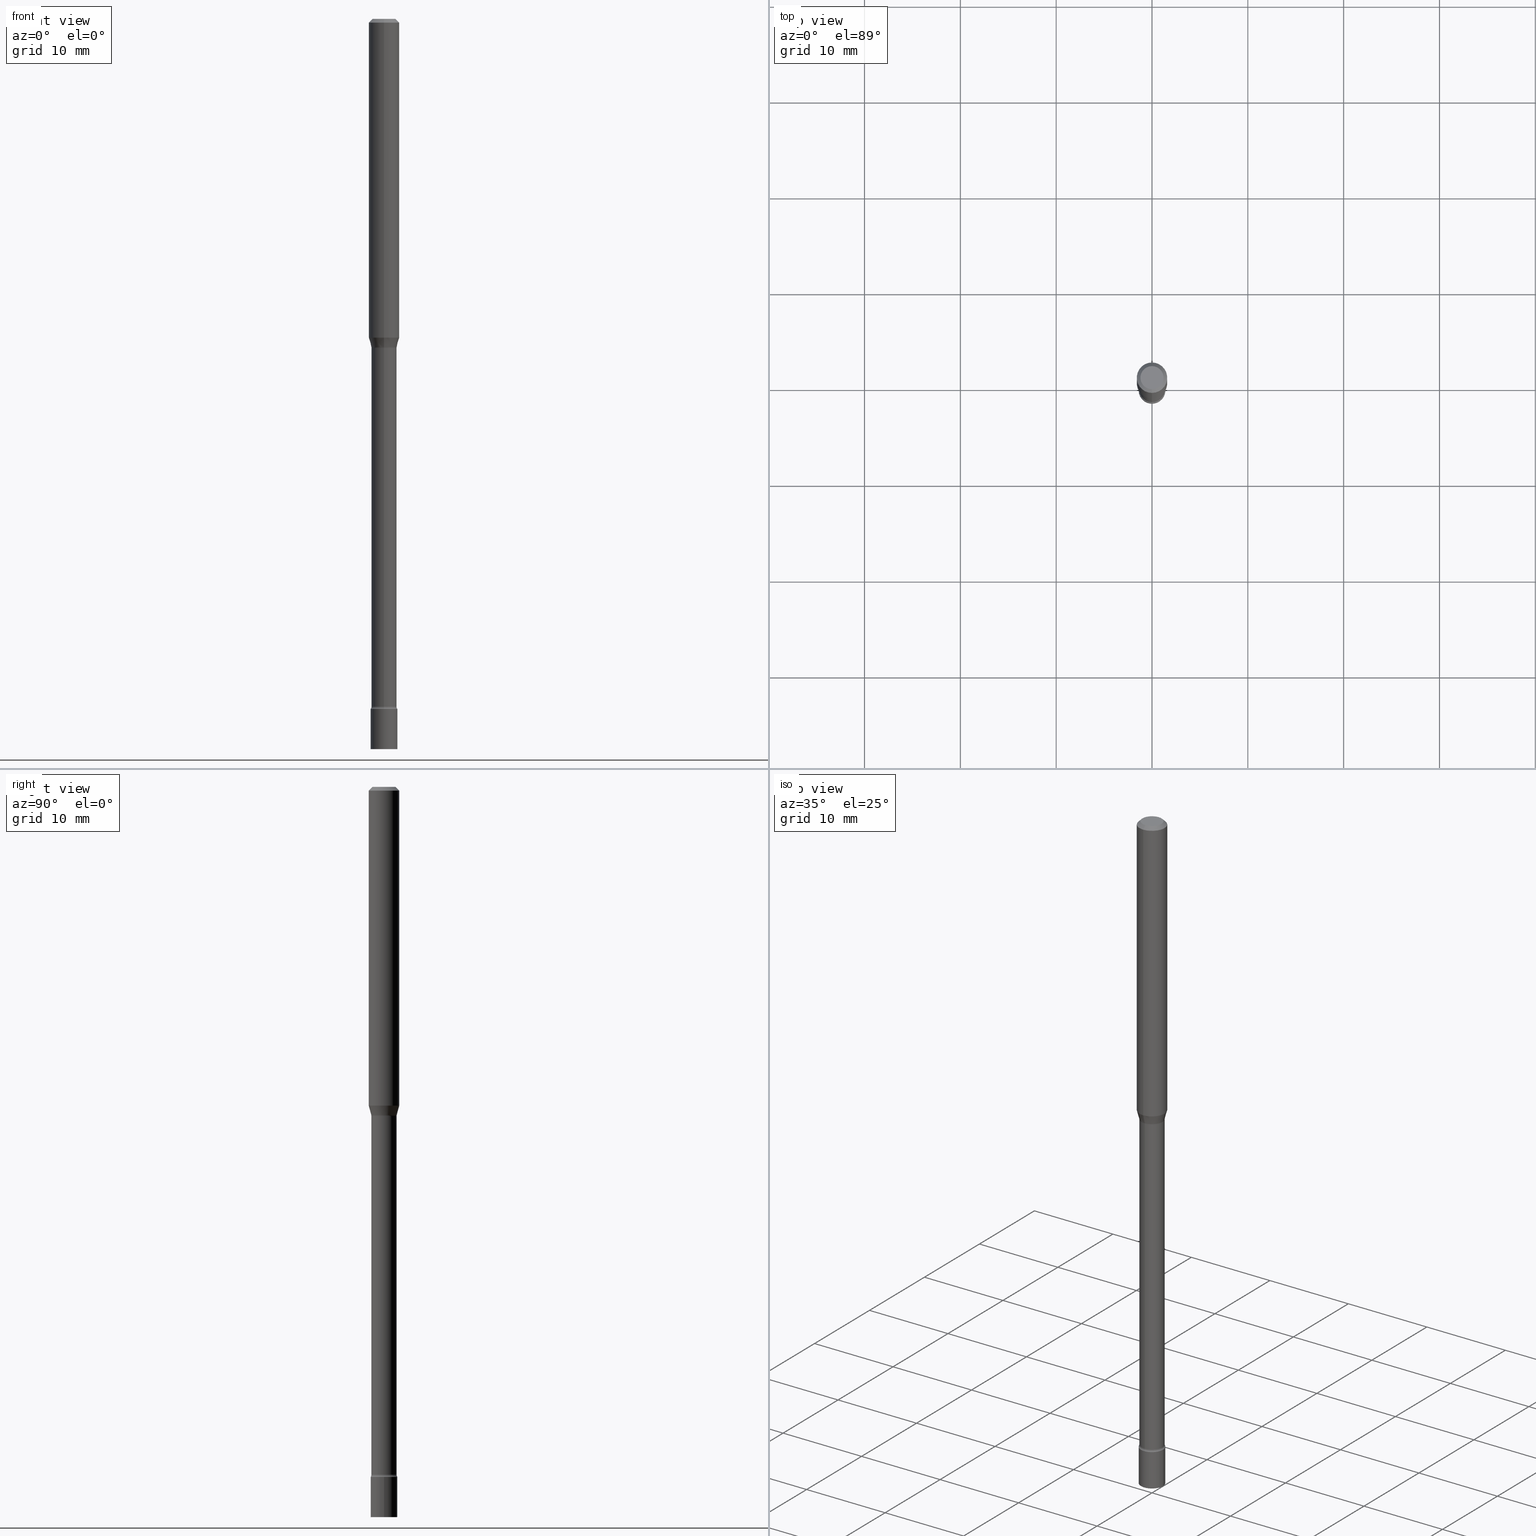
[diagram: canonical four-view strip — front | top / right | iso, engineering-drawing reading convention]
A machine part, canonical four-view strip (front | top / right | iso — engineering-drawing reading convention). The complete STEP part file that produces these views, byte-faithful:
ISO-10303-21;
HEADER;
FILE_DESCRIPTION (( 'STEP AP203' ),
    '1' );
FILE_NAME ('03640.STEP',
    '2024-03-08T22:17:13',
    ( '' ),
    ( '' ),
    'SwSTEP 2.0',
    'SolidWorks 2023',
    '' );
FILE_SCHEMA (( 'CONFIG_CONTROL_DESIGN' ));
ENDSEC;

DATA;
#1 = DIRECTION ( 'NONE',  ( -2.445453515065579190E-29, 3.491503236596668519E-15, 1.000000000000000000 ) ) ;
#2 = PERSON_AND_ORGANIZATION ( #211, #143 ) ;
#3 = CARTESIAN_POINT ( 'NONE',  ( 6.909949201323477273E-29, -9.865576133195845499E-15, -2.825613307291703347 ) ) ;
#4 = CLOSED_SHELL ( 'NONE', ( #458, #490, #255, #201 ) ) ;
#5 = DIRECTION ( 'NONE',  ( 1.000000000000000000, -6.982962677686265922E-15, 4.876176775795935793E-29 ) ) ;
#6 = CARTESIAN_POINT ( 'NONE',  ( 4.075357388645994900E-16, 0.05221111260565927670, -1.348092501787273800 ) ) ;
#7 = DIRECTION ( 'NONE',  ( -2.445453515065579190E-29, 3.491503236596668519E-15, 1.000000000000000000 ) ) ;
#8 = UNCERTAINTY_MEASURE_WITH_UNIT (LENGTH_MEASURE( 1.000000000000000082E-05 ), #519, 'distance_accuracy_value', 'NONE');
#9 = CARTESIAN_POINT ( 'NONE',  ( -3.610191704363808417E-16, -0.05170000000000012780, 1.805107173320482273E-16 ) ) ;
#10 = CALENDAR_DATE ( 2024, 8, 3 ) ;
#11 = DIRECTION ( 'NONE',  ( -6.982962677686265922E-15, -1.000000000000000000, 4.370956789862821150E-15 ) ) ;
#12 = PRODUCT_DEFINITION_SHAPE ( 'NONE', 'NONE',  #235 ) ;
#13 = AXIS2_PLACEMENT_3D ( 'NONE', #112, #402, #357 ) ;
#14 = EDGE_CURVE ( 'NONE', #161, #470, #78, .T. ) ;
#15 = CARTESIAN_POINT ( 'NONE',  ( -3.773273898774340269E-16, -0.04749999999999999362, 1.369335329537650629E-16 ) ) ;
#16 = DATE_TIME_ROLE ( 'classification_date' ) ;
#17 = DIRECTION ( 'NONE',  ( -2.445453515065579190E-29, 3.491503236596668519E-15, 1.000000000000000000 ) ) ;
#18 = LINE ( 'NONE', #54, #494 ) ;
#19 = CARTESIAN_POINT ( 'NONE',  ( 3.907985046681240802E-16, 0.05499999999999006378, -2.835000000000000409 ) ) ;
#20 = AXIS2_PLACEMENT_3D ( 'NONE', #251, #485, #416 ) ;
#21 = ORIENTED_EDGE ( 'NONE', *, *, #299, .F. ) ;
#22 = FACE_OUTER_BOUND ( 'NONE', #66, .T. ) ;
#23 = DIRECTION ( 'NONE',  ( 1.000000000000000000, -6.982962677686266711E-15, 4.876176775795935793E-29 ) ) ;
#24 = ORIENTED_EDGE ( 'NONE', *, *, #183, .T. ) ;
#25 = DIRECTION ( 'NONE',  ( -1.000000000000000000, 6.982962677686265922E-15, -4.883557194083112901E-29 ) ) ;
#26 = VERTEX_POINT ( 'NONE', #312 ) ;
#27 = CARTESIAN_POINT ( 'NONE',  ( 3.840629472728140100E-16, 0.05499999999999010541, -2.835000000000000409 ) ) ;
#28 = CC_DESIGN_DATE_AND_TIME_ASSIGNMENT ( #501, #174, ( #235 ) ) ;
#29 = ADVANCED_FACE ( 'NONE', ( #471 ), #208, .F. ) ;
#30 = ORIENTED_EDGE ( 'NONE', *, *, #59, .F. ) ;
#31 = PRODUCT_DEFINITION_FORMATION_WITH_SPECIFIED_SOURCE ( 'ANY', '', #64, .NOT_KNOWN. ) ;
#32 = VERTEX_POINT ( 'NONE', #19 ) ;
#33 = CARTESIAN_POINT ( 'NONE',  ( -4.657636106016061720E-16, -0.06670000000001005680, -2.825613307291703347 ) ) ;
#34 = ORIENTED_EDGE ( 'NONE', *, *, #513, .F. ) ;
#35 = MANIFOLD_SOLID_BREP ( 'Body-Move/Copy2[2]', #447 ) ;
#36 = DIRECTION ( 'NONE',  ( -6.982962677686265922E-15, -1.000000000000000000, 3.491503236596668913E-15 ) ) ;
#37 = DIRECTION ( 'NONE',  ( -2.445453515065579190E-29, 3.491503236596668519E-15, 1.000000000000000000 ) ) ;
#38 = ORIENTED_EDGE ( 'NONE', *, *, #334, .F. ) ;
#39 = ADVANCED_FACE ( 'NONE', ( #465 ), #393, .F. ) ;
#40 = CIRCLE ( 'NONE', #175, 0.01500000000000001853 ) ;
#41 = CARTESIAN_POINT ( 'NONE',  ( 3.202795432268188890E-29, -4.572800320688787999E-15, -1.309693851278256549 ) ) ;
#42 = ORIENTED_EDGE ( 'NONE', *, *, #213, .F. ) ;
#43 = EDGE_CURVE ( 'NONE', #171, #237, #244, .T. ) ;
#44 = VERTEX_POINT ( 'NONE', #105 ) ;
#45 = PLANE ( 'NONE',  #142 ) ;
#46 = PERSON_AND_ORGANIZATION_ROLE ( 'design_owner' ) ;
#47 = ORIENTED_EDGE ( 'NONE', *, *, #111, .F. ) ;
#48 = CC_DESIGN_PERSON_AND_ORGANIZATION_ASSIGNMENT ( #103, #344, ( #235 ) ) ;
#49 = EDGE_CURVE ( 'NONE', #237, #171, #238, .T. ) ;
#50 = AXIS2_PLACEMENT_3D ( 'NONE', #215, #100, #173 ) ;
#51 = CC_DESIGN_APPROVAL ( #72, ( #31 ) ) ;
#52 = DIRECTION ( 'NONE',  ( 1.000000000000000000, -6.982962677686266711E-15, 4.876176775795935793E-29 ) ) ;
#53 = CARTESIAN_POINT ( 'NONE',  ( 3.202795432268188890E-29, -4.572800320688787999E-15, -1.309693851278256549 ) ) ;
#54 = CARTESIAN_POINT ( 'NONE',  ( 3.709822678791042177E-16, 0.05221111260565927670, -1.348092501787273800 ) ) ;
#55 = AXIS2_PLACEMENT_3D ( 'NONE', #335, #87, #489 ) ;
#56 = PERSON_AND_ORGANIZATION ( #211, #143 ) ;
#57 = DIRECTION ( 'NONE',  ( 6.982962677686265922E-15, 1.000000000000000000, -3.491503236596668913E-15 ) ) ;
#58 = CALENDAR_DATE ( 2024, 8, 3 ) ;
#59 = EDGE_CURVE ( 'NONE', #26, #333, #266, .T. ) ;
#60 = CARTESIAN_POINT ( 'NONE',  ( 6.909905994532571986E-29, -9.865638007779597424E-15, -2.825613307291703347 ) ) ;
#61 = DATE_AND_TIME ( #10, #453 ) ;
#62 = DIRECTION ( 'NONE',  ( -2.445453515065579190E-29, 3.491503236596668519E-15, 1.000000000000000000 ) ) ;
#63 = CARTESIAN_POINT ( 'NONE',  ( 7.070508149077992484E-46, -1.009493819236507382E-31, -2.891287078457668067E-17 ) ) ;
#64 = PRODUCT ( '03640', '03640', '', ( #410 ) ) ;
#65 = AXIS2_PLACEMENT_3D ( 'NONE', #184, #37, #510 ) ;
#66 = EDGE_LOOP ( 'NONE', ( #232, #480, #350, #83 ) ) ;
#67 = EDGE_CURVE ( 'NONE', #44, #433, #512, .T. ) ;
#68 = DIRECTION ( 'NONE',  ( -2.445453515065579190E-29, 3.491503236596668519E-15, 1.000000000000000000 ) ) ;
#69 = DIRECTION ( 'NONE',  ( -2.445453515065579470E-29, 3.491503236596668913E-15, 1.000000000000000000 ) ) ;
#70 = EDGE_LOOP ( 'NONE', ( #122, #196, #449, #400 ) ) ;
#71 = ADVANCED_BREP_SHAPE_REPRESENTATION ( '03640', ( #194, #35, #508 ), #225 ) ;
#72 = APPROVAL ( #300, 'UNSPECIFIED' ) ;
#73 = ADVANCED_FACE ( 'NONE', ( #150 ), #317, .T. ) ;
#74 = DIRECTION ( 'NONE',  ( 1.000000000000000000, -7.105427357601001070E-15, 4.926315776712220110E-29 ) ) ;
#75 = EDGE_LOOP ( 'NONE', ( #38, #473 ) ) ;
#76 = DIRECTION ( 'NONE',  ( 2.445453515065579190E-29, -3.491503236596668519E-15, -1.000000000000000000 ) ) ;
#77 = AXIS2_PLACEMENT_3D ( 'NONE', #248, #336, #481 ) ;
#78 = CIRCLE ( 'NONE', #138, 0.05500000000000000028 ) ;
#79 = CARTESIAN_POINT ( 'NONE',  ( 4.739320047520198249E-16, 0.06669999999999527696, -1.351974787463811722 ) ) ;
#80 = DIRECTION ( 'NONE',  ( 7.105427357601001859E-15, 1.000000000000000000, 0.000000000000000000 ) ) ;
#81 = ORIENTED_EDGE ( 'NONE', *, *, #273, .T. ) ;
#82 = AXIS2_PLACEMENT_3D ( 'NONE', #115, #68, #475 ) ;
#83 = ORIENTED_EDGE ( 'NONE', *, *, #411, .F. ) ;
#84 =( NAMED_UNIT ( * ) SI_UNIT ( $, .STERADIAN. ) SOLID_ANGLE_UNIT ( ) );
#85 = EDGE_LOOP ( 'NONE', ( #185, #371, #158, #42 ) ) ;
#86 = AXIS2_PLACEMENT_3D ( 'NONE', #314, #109, #274 ) ;
#87 = DIRECTION ( 'NONE',  ( -2.445453515065579190E-29, 3.491503236596668519E-15, 1.000000000000000000 ) ) ;
#88 = ADVANCED_FACE ( 'NONE', ( #390 ), #438, .T. ) ;
#89 =( LENGTH_UNIT ( ) NAMED_UNIT ( * ) SI_UNIT ( $, .METRE. ) );
#90 = ORIENTED_EDGE ( 'NONE', *, *, #399, .F. ) ;
#91 = DIRECTION ( 'NONE',  ( -6.982962677686266711E-15, -1.000000000000000000, 0.000000000000000000 ) ) ;
#92 = ADVANCED_FACE ( 'NONE', ( #505 ), #227, .T. ) ;
#93 = VERTEX_POINT ( 'NONE', #6 ) ;
#94 = CARTESIAN_POINT ( 'NONE',  ( 3.668180272598376107E-31, -5.237254854895013132E-17, -0.01500000000000003067 ) ) ;
#95 = CARTESIAN_POINT ( 'NONE',  ( 6.932904065534862655E-29, -9.898349595620319665E-15, -2.835000000000000409 ) ) ;
#96 = CIRCLE ( 'NONE', #156, 0.05500000000000000028 ) ;
#97 = CARTESIAN_POINT ( 'NONE',  ( 0.000000000000000000, 0.000000000000000000, 0.000000000000000000 ) ) ;
#98 = CC_DESIGN_PERSON_AND_ORGANIZATION_ASSIGNMENT ( #139, #456, ( #407 ) ) ;
#99 = PERSON_AND_ORGANIZATION ( #211, #143 ) ;
#100 = DIRECTION ( 'NONE',  ( -2.445468806185136597E-29, 3.491481338843145583E-15, 1.000000000000000000 ) ) ;
#101 = APPROVAL_ROLE ( '' ) ;
#102 = TOROIDAL_SURFACE ( 'NONE', #517, 0.06670000000000018969, 0.01499999999999994740 ) ;
#103 = PERSON_AND_ORGANIZATION ( #211, #143 ) ;
#104 = LOCAL_TIME ( 17, 17, 13.00000000000000000, #491 ) ;
#105 = CARTESIAN_POINT ( 'NONE',  ( -3.610191704363469207E-16, -0.05170000000000472135, -1.351974787463811056 ) ) ;
#106 = ORIENTED_EDGE ( 'NONE', *, *, #270, .F. ) ;
#107 = DIRECTION ( 'NONE',  ( -6.982962677686266711E-15, -1.000000000000000000, 3.491503236596668913E-15 ) ) ;
#108 = CIRCLE ( 'NONE', #233, 0.05221111260566397433 ) ;
#109 = DIRECTION ( 'NONE',  ( -2.445453515065579190E-29, 3.491503236596668519E-15, 1.000000000000000000 ) ) ;
#110 = APPROVAL ( #463, 'UNSPECIFIED' ) ;
#111 = EDGE_CURVE ( 'NONE', #140, #26, #359, .T. ) ;
#112 = CARTESIAN_POINT ( 'NONE',  ( 3.306191496283416407E-29, -4.720424346226990605E-15, -1.351974787463811278 ) ) ;
#113 = ORIENTED_EDGE ( 'NONE', *, *, #389, .T. ) ;
#114 = DIRECTION ( 'NONE',  ( -2.445468806185136597E-29, 3.491481338843145583E-15, 1.000000000000000000 ) ) ;
#115 = CARTESIAN_POINT ( 'NONE',  ( 3.296697547129238582E-29, -4.706869333221964340E-15, -1.348092501787273356 ) ) ;
#116 = CARTESIAN_POINT ( 'NONE',  ( -3.840629472726750225E-16, -0.05500000000000986045, -2.835000000000000409 ) ) ;
#117 = VECTOR ( 'NONE', #250, 39.37007874015748143 ) ;
#118 = EDGE_LOOP ( 'NONE', ( #315, #148, #356, #275 ) ) ;
#119 = DIRECTION ( 'NONE',  ( -6.982962677686265922E-15, -1.000000000000000000, 3.491503236596668124E-15 ) ) ;
#120 = LINE ( 'NONE', #476, #296 ) ;
#121 = VECTOR ( 'NONE', #352, 39.37007874015748143 ) ;
#122 = ORIENTED_EDGE ( 'NONE', *, *, #283, .F. ) ;
#123 = VERTEX_POINT ( 'NONE', #373 ) ;
#124 = ADVANCED_FACE ( 'NONE', ( #176 ), #152, .T. ) ;
#125 = DIRECTION ( 'NONE',  ( -2.445453515065579190E-29, 3.491503236596668519E-15, 1.000000000000000000 ) ) ;
#126 = CIRCLE ( 'NONE', #382, 0.01499999999999994220 ) ;
#127 = EDGE_CURVE ( 'NONE', #279, #365, #254, .T. ) ;
#128 = DIRECTION ( 'NONE',  ( -2.445453515065579190E-29, 3.491503236596668519E-15, 1.000000000000000000 ) ) ;
#129 = FACE_OUTER_BOUND ( 'NONE', #366, .T. ) ;
#130 = CARTESIAN_POINT ( 'NONE',  ( -0.05500000000000000028, -9.795598301406821771E-15, -2.835000000000000409 ) ) ;
#131 = DIRECTION ( 'NONE',  ( -2.445468806185136597E-29, 3.491481338843145583E-15, 1.000000000000000000 ) ) ;
#132 = CIRCLE ( 'NONE', #86, 0.05500000000000000028 ) ;
#133 = CARTESIAN_POINT ( 'NONE',  ( 3.296697547129238582E-29, -4.706869333221964340E-15, -1.348092501787273356 ) ) ;
#134 = CC_DESIGN_PERSON_AND_ORGANIZATION_ASSIGNMENT ( #56, #502, ( #31 ) ) ;
#135 = EDGE_CURVE ( 'NONE', #470, #161, #363, .T. ) ;
#136 = VECTOR ( 'NONE', #431, 39.37007874015748143 ) ;
#137 = SECURITY_CLASSIFICATION_LEVEL ( 'unclassified' ) ;
#138 = AXIS2_PLACEMENT_3D ( 'NONE', #269, #218, #307 ) ;
#139 = PERSON_AND_ORGANIZATION ( #211, #143 ) ;
#140 = VERTEX_POINT ( 'NONE', #219 ) ;
#141 = DIRECTION ( 'NONE',  ( -6.982962677686266711E-15, -1.000000000000000000, 0.000000000000000000 ) ) ;
#142 = AXIS2_PLACEMENT_3D ( 'NONE', #245, #292, #169 ) ;
#143 = ORGANIZATION ( 'UNSPECIFIED', 'UNSPECIFIED', '' ) ;
#144 = CARTESIAN_POINT ( 'NONE',  ( 4.364351673553919652E-16, 0.06249999999999995143, -0.01500000000000024751 ) ) ;
#145 = ORIENTED_EDGE ( 'NONE', *, *, #442, .F. ) ;
#146 = DIRECTION ( 'NONE',  ( -6.982962677686266711E-15, -1.000000000000000000, 5.284038672464726492E-15 ) ) ;
#147 = CARTESIAN_POINT ( 'NONE',  ( -3.610191704363126052E-16, -0.05170000000001011287, -2.825613307291703347 ) ) ;
#148 = ORIENTED_EDGE ( 'NONE', *, *, #163, .T. ) ;
#149 = AXIS2_PLACEMENT_3D ( 'NONE', #430, #509, #146 ) ;
#150 = FACE_OUTER_BOUND ( 'NONE', #488, .T. ) ;
#151 = DIRECTION ( 'NONE',  ( -6.982962677686263555E-15, -1.000000000000000000, 0.000000000000000000 ) ) ;
#152 = CONICAL_SURFACE ( 'NONE', #498, 0.05221111260566397433, 0.2617993877991502960 ) ;
#153 = CARTESIAN_POINT ( 'NONE',  ( 0.000000000000000000, 0.000000000000000000, 0.000000000000000000 ) ) ;
#154 = DIRECTION ( 'NONE',  ( -2.445453515065579470E-29, 3.491503236596668913E-15, 1.000000000000000000 ) ) ;
#155 = CIRCLE ( 'NONE', #13, 0.05169999999999999596 ) ;
#156 = AXIS2_PLACEMENT_3D ( 'NONE', #284, #166, #91 ) ;
#157 = ORIENTED_EDGE ( 'NONE', *, *, #223, .F. ) ;
#158 = ORIENTED_EDGE ( 'NONE', *, *, #14, .F. ) ;
#159 = CARTESIAN_POINT ( 'NONE',  ( 0.000000000000000000, 0.000000000000000000, 0.000000000000000000 ) ) ;
#160 = ORIENTED_EDGE ( 'NONE', *, *, #223, .T. ) ;
#161 = VERTEX_POINT ( 'NONE', #256 ) ;
#162 = CARTESIAN_POINT ( 'NONE',  ( 0.000000000000000000, 0.000000000000000000, 0.000000000000000000 ) ) ;
#163 = EDGE_CURVE ( 'NONE', #93, #140, #18, .T. ) ;
#164 = EDGE_LOOP ( 'NONE', ( #202, #326, #311, #346 ) ) ;
#165 = LINE ( 'NONE', #286, #117 ) ;
#166 = DIRECTION ( 'NONE',  ( -2.445453515065579190E-29, 3.491503236596668519E-15, 1.000000000000000000 ) ) ;
#167 = EDGE_LOOP ( 'NONE', ( #21, #249 ) ) ;
#168 = CIRCLE ( 'NONE', #65, 0.05221111260566397433 ) ;
#169 = DIRECTION ( 'NONE',  ( -1.000000000000000000, 6.982962677686265922E-15, -4.876176775795935793E-29 ) ) ;
#170 = APPROVAL_ROLE ( '' ) ;
#171 = VERTEX_POINT ( 'NONE', #15 ) ;
#172 = FACE_OUTER_BOUND ( 'NONE', #361, .T. ) ;
#173 = DIRECTION ( 'NONE',  ( 1.000000000000000000, -6.982962677686279332E-15, 0.000000000000000000 ) ) ;
#174 = DATE_TIME_ROLE ( 'creation_date' ) ;
#175 = AXIS2_PLACEMENT_3D ( 'NONE', #79, #74, #195 ) ;
#176 = FACE_OUTER_BOUND ( 'NONE', #187, .T. ) ;
#177 = LOCAL_TIME ( 17, 17, 13.00000000000000000, #210 ) ;
#178 = ADVANCED_FACE ( 'NONE', ( #22 ), #276, .F. ) ;
#179 = COORDINATED_UNIVERSAL_TIME_OFFSET ( 5, 0, .BEHIND. ) ;
#180 = ADVANCED_FACE ( 'NONE', ( #222 ), #460, .T. ) ;
#181 = AXIS2_PLACEMENT_3D ( 'NONE', #27, #504, #428 ) ;
#182 = CC_DESIGN_PERSON_AND_ORGANIZATION_ASSIGNMENT ( #306, #304, ( #31 ) ) ;
#183 = EDGE_CURVE ( 'NONE', #511, #333, #343, .T. ) ;
#184 = CARTESIAN_POINT ( 'NONE',  ( 3.296697547129238582E-29, -4.706869333221964340E-15, -1.348092501787273356 ) ) ;
#185 = ORIENTED_EDGE ( 'NONE', *, *, #299, .T. ) ;
#186 = LINE ( 'NONE', #436, #375 ) ;
#187 = EDGE_LOOP ( 'NONE', ( #362, #229, #81, #47 ) ) ;
#188 = DIRECTION ( 'NONE',  ( 2.445453515065578349E-29, -3.491503236596668913E-15, -1.000000000000000000 ) ) ;
#189 = AXIS2_PLACEMENT_3D ( 'NONE', #450, #125, #444 ) ;
#190 = FACE_OUTER_BOUND ( 'NONE', #285, .T. ) ;
#191 = ORIENTED_EDGE ( 'NONE', *, *, #67, .F. ) ;
#192 = DIRECTION ( 'NONE',  ( -4.851104656540964275E-15, -0.7071067811865500152, -0.7071067811865450192 ) ) ;
#193 = ORIENTED_EDGE ( 'NONE', *, *, #513, .T. ) ;
#194 = MANIFOLD_SOLID_BREP ( 'Body-Move/Copy2[1]', #4 ) ;
#195 = DIRECTION ( 'NONE',  ( 7.105427357601006592E-15, 1.000000000000000000, 0.000000000000000000 ) ) ;
#196 = ORIENTED_EDGE ( 'NONE', *, *, #231, .F. ) ;
#197 = ORIENTED_EDGE ( 'NONE', *, *, #43, .F. ) ;
#198 = AXIS2_PLACEMENT_3D ( 'NONE', #472, #385, #348 ) ;
#199 = ORIENTED_EDGE ( 'NONE', *, *, #378, .F. ) ;
#200 = DIMENSIONAL_EXPONENTS ( 1.000000000000000000, 0.000000000000000000, 0.000000000000000000, 0.000000000000000000, 0.000000000000000000, 0.000000000000000000, 0.000000000000000000 ) ;
#201 = ADVANCED_FACE ( 'NONE', ( #492 ), #45, .T. ) ;
#202 = ORIENTED_EDGE ( 'NONE', *, *, #389, .F. ) ;
#203 = FACE_OUTER_BOUND ( 'NONE', #240, .T. ) ;
#204 = DIRECTION ( 'NONE',  ( -6.982962677686266711E-15, -1.000000000000000000, 5.232311393739397672E-15 ) ) ;
#205 = PERSON_AND_ORGANIZATION ( #211, #143 ) ;
#206 = AXIS2_PLACEMENT_3D ( 'NONE', #291, #131, #52 ) ;
#207 = CC_DESIGN_PERSON_AND_ORGANIZATION_ASSIGNMENT ( #2, #46, ( #64 ) ) ;
#208 = TOROIDAL_SURFACE ( 'NONE', #478, 0.06669999999999999540, 0.01500000000000002720 ) ;
#209 = FACE_OUTER_BOUND ( 'NONE', #516, .T. ) ;
#210 = COORDINATED_UNIVERSAL_TIME_OFFSET ( 5, 0, .BEHIND. ) ;
#211 = PERSON ( 'UNSPECIFIED', 'UNSPECIFIED', 'UNSPECIFIED', ('UNSPECIFIED'), ('UNSPECIFIED'), ('UNSPECIFIED') ) ;
#212 = DATE_AND_TIME ( #499, #104 ) ;
#213 = EDGE_CURVE ( 'NONE', #123, #161, #165, .T. ) ;
#214 = VECTOR ( 'NONE', #493, 39.37007874015748143 ) ;
#215 = CARTESIAN_POINT ( 'NONE',  ( 6.932904065534862655E-29, -9.898349595620319665E-15, -2.835000000000000409 ) ) ;
#216 = LOCAL_TIME ( 17, 17, 13.00000000000000000, #339 ) ;
#217 = ADVANCED_FACE ( 'NONE', ( #203 ), #224, .F. ) ;
#218 = DIRECTION ( 'NONE',  ( -2.445468806185136597E-29, 3.491481338843145583E-15, 1.000000000000000000 ) ) ;
#219 = CARTESIAN_POINT ( 'NONE',  ( 4.440892098500946636E-16, 0.06249999999999545502, -1.309693851278256771 ) ) ;
#220 = APPROVAL_DATE_TIME ( #61, #110 ) ;
#221 = ORIENTED_EDGE ( 'NONE', *, *, #135, .F. ) ;
#222 = FACE_OUTER_BOUND ( 'NONE', #396, .T. ) ;
#223 = EDGE_CURVE ( 'NONE', #365, #279, #461, .T. ) ;
#224 = TOROIDAL_SURFACE ( 'NONE', #189, 0.06670000000000018969, 0.01499999999999994740 ) ;
#225 =( GEOMETRIC_REPRESENTATION_CONTEXT ( 3 ) GLOBAL_UNCERTAINTY_ASSIGNED_CONTEXT ( ( #8 ) ) GLOBAL_UNIT_ASSIGNED_CONTEXT ( ( #519, #338, #84 ) ) REPRESENTATION_CONTEXT ( 'NONE', 'WORKASPACE' ) );
#226 = VERTEX_POINT ( 'NONE', #329 ) ;
#227 = CYLINDRICAL_SURFACE ( 'NONE', #457, 0.05170000000000012780 ) ;
#228 = DIRECTION ( 'NONE',  ( 1.000000000000000000, -6.982962677686279332E-15, 0.000000000000000000 ) ) ;
#229 = ORIENTED_EDGE ( 'NONE', *, *, #313, .T. ) ;
#230 = DIRECTION ( 'NONE',  ( 1.000000000000000000, -6.982962677686279332E-15, 0.000000000000000000 ) ) ;
#231 = EDGE_CURVE ( 'NONE', #265, #93, #108, .T. ) ;
#232 = ORIENTED_EDGE ( 'NONE', *, *, #313, .F. ) ;
#233 = AXIS2_PLACEMENT_3D ( 'NONE', #486, #128, #204 ) ;
#234 = LINE ( 'NONE', #398, #443 ) ;
#235 = PRODUCT_DEFINITION ( 'UNKNOWN', '', #31, #341 ) ;
#236 = ADVANCED_FACE ( 'NONE', ( #290 ), #102, .F. ) ;
#237 = VERTEX_POINT ( 'NONE', #369 ) ;
#238 = CIRCLE ( 'NONE', #355, 0.04749999999999999362 ) ;
#239 = FACE_OUTER_BOUND ( 'NONE', #75, .T. ) ;
#240 = EDGE_LOOP ( 'NONE', ( #157, #113, #409, #199 ) ) ;
#241 = DIRECTION ( 'NONE',  ( -2.445453515065579470E-29, 3.491503236596668913E-15, 1.000000000000000000 ) ) ;
#242 = VECTOR ( 'NONE', #192, 39.37007874015748143 ) ;
#243 = ORIENTED_EDGE ( 'NONE', *, *, #43, .T. ) ;
#244 = CIRCLE ( 'NONE', #262, 0.04749999999999999362 ) ;
#245 = CARTESIAN_POINT ( 'NONE',  ( 3.840629472728180036E-16, 0.05499999999998952949, -3.000000000000000444 ) ) ;
#246 = LENGTH_MEASURE_WITH_UNIT ( LENGTH_MEASURE( 0.02539999999999999897 ), #89 );
#247 = DIRECTION ( 'NONE',  ( -6.982962677686265922E-15, -1.000000000000000000, 3.491503236596668124E-15 ) ) ;
#248 = CARTESIAN_POINT ( 'NONE',  ( 0.000000000000000000, 0.000000000000000000, 0.000000000000000000 ) ) ;
#249 = ORIENTED_EDGE ( 'NONE', *, *, #305, .F. ) ;
#250 = DIRECTION ( 'NONE',  ( -2.445468806185136877E-29, 3.491481338843145188E-15, 1.000000000000000000 ) ) ;
#251 = CARTESIAN_POINT ( 'NONE',  ( 3.668180272598376107E-31, -5.237254854895013132E-17, -0.01500000000000003067 ) ) ;
#252 = CIRCLE ( 'NONE', #451, 0.01500000000000003587 ) ;
#253 = DATE_AND_TIME ( #58, #177 ) ;
#254 = CIRCLE ( 'NONE', #406, 0.05170000000000024576 ) ;
#255 = ADVANCED_FACE ( 'NONE', ( #172 ), #337, .T. ) ;
#256 = CARTESIAN_POINT ( 'NONE',  ( 0.05500000000000000028, -1.028241254289306465E-14, -2.835000000000000409 ) ) ;
#257 = ADVANCED_FACE ( 'NONE', ( #190 ), #397, .T. ) ;
#258 = CALENDAR_DATE ( 2024, 8, 3 ) ;
#259 = AXIS2_PLACEMENT_3D ( 'NONE', #424, #62, #383 ) ;
#260 = DIRECTION ( 'NONE',  ( -2.445453515065579190E-29, 3.491503236596668519E-15, 1.000000000000000000 ) ) ;
#261 = APPROVAL_ROLE ( '' ) ;
#262 = AXIS2_PLACEMENT_3D ( 'NONE', #379, #17, #387 ) ;
#263 = SHAPE_DEFINITION_REPRESENTATION ( #12, #71 ) ;
#264 = DIRECTION ( 'NONE',  ( -2.445453515065579190E-29, 3.491503236596668519E-15, 1.000000000000000000 ) ) ;
#265 = VERTEX_POINT ( 'NONE', #318 ) ;
#266 = LINE ( 'NONE', #404, #121 ) ;
#267 = DIRECTION ( 'NONE',  ( -2.445453515065579190E-29, 3.491503236596668519E-15, 1.000000000000000000 ) ) ;
#268 = CARTESIAN_POINT ( 'NONE',  ( 3.790745495280832746E-16, 0.05169999999999037865, -2.825613307291703347 ) ) ;
#269 = CARTESIAN_POINT ( 'NONE',  ( 6.932904065534862655E-29, -9.898349595620319665E-15, -2.835000000000000409 ) ) ;
#270 = EDGE_CURVE ( 'NONE', #433, #44, #155, .T. ) ;
#271 = CARTESIAN_POINT ( 'NONE',  ( -3.645882506857935592E-16, -0.05221111260566867890, -1.348092501787273134 ) ) ;
#272 = ORIENTED_EDGE ( 'NONE', *, *, #59, .T. ) ;
#273 = EDGE_CURVE ( 'NONE', #265, #26, #432, .T. ) ;
#274 = DIRECTION ( 'NONE',  ( -6.982962677686266711E-15, -1.000000000000000000, 0.000000000000000000 ) ) ;
#275 = ORIENTED_EDGE ( 'NONE', *, *, #273, .F. ) ;
#276 = TOROIDAL_SURFACE ( 'NONE', #259, 0.06669999999999999540, 0.01500000000000002720 ) ;
#277 = DIRECTION ( 'NONE',  ( 1.000000000000000000, -7.105427357601001070E-15, 4.926315776712220110E-29 ) ) ;
#278 = EDGE_LOOP ( 'NONE', ( #474, #395, #191, #34 ) ) ;
#279 = VERTEX_POINT ( 'NONE', #147 ) ;
#280 = DIRECTION ( 'NONE',  ( -2.445468806185136877E-29, 3.491481338843145188E-15, 1.000000000000000000 ) ) ;
#281 = ORIENTED_EDGE ( 'NONE', *, *, #408, .F. ) ;
#282 = APPROVAL ( #370, 'UNSPECIFIED' ) ;
#283 = EDGE_CURVE ( 'NONE', #93, #433, #40, .T. ) ;
#284 = CARTESIAN_POINT ( 'NONE',  ( 6.932860715210917485E-29, -9.898411675751556010E-15, -2.835000000000000409 ) ) ;
#285 = EDGE_LOOP ( 'NONE', ( #197, #386, #289, #145 ) ) ;
#286 = CARTESIAN_POINT ( 'NONE',  ( 0.05500000000000000028, -3.840629472727446888E-16, 2.681897226687764826E-30 ) ) ;
#287 = APPLICATION_PROTOCOL_DEFINITION ( 'international standard', 'config_control_design', 1994, #293 ) ;
#288 = AXIS2_PLACEMENT_3D ( 'NONE', #506, #114, #230 ) ;
#289 = ORIENTED_EDGE ( 'NONE', *, *, #483, .T. ) ;
#290 = FACE_OUTER_BOUND ( 'NONE', #164, .T. ) ;
#291 = CARTESIAN_POINT ( 'NONE',  ( 0.000000000000000000, 0.000000000000000000, 0.000000000000000000 ) ) ;
#292 = DIRECTION ( 'NONE',  ( 2.438088387897960049E-29, -3.491481338843145188E-15, -1.000000000000000000 ) ) ;
#293 = APPLICATION_CONTEXT ( 'configuration controlled 3d designs of mechanical parts and assemblies' ) ;
#294 = DIRECTION ( 'NONE',  ( -2.445468806185136597E-29, 3.491481338843145583E-15, 1.000000000000000000 ) ) ;
#295 = FACE_OUTER_BOUND ( 'NONE', #85, .T. ) ;
#296 = VECTOR ( 'NONE', #69, 39.37007874015748143 ) ;
#297 = AXIS2_PLACEMENT_3D ( 'NONE', #464, #188, #57 ) ;
#298 = APPROVAL_DATE_TIME ( #495, #72 ) ;
#299 = EDGE_CURVE ( 'NONE', #123, #226, #302, .T. ) ;
#300 = APPROVAL_STATUS ( 'not_yet_approved' ) ;
#301 = DIRECTION ( 'NONE',  ( -2.445453515065579190E-29, 3.491503236596668519E-15, 1.000000000000000000 ) ) ;
#302 = CIRCLE ( 'NONE', #288, 0.05500000000000000028 ) ;
#303 = APPROVAL_PERSON_ORGANIZATION ( #205, #282, #170 ) ;
#304 = PERSON_AND_ORGANIZATION_ROLE ( 'creator' ) ;
#305 = EDGE_CURVE ( 'NONE', #226, #123, #417, .T. ) ;
#306 = PERSON_AND_ORGANIZATION ( #211, #143 ) ;
#307 = DIRECTION ( 'NONE',  ( 1.000000000000000000, -6.982962677686279332E-15, 0.000000000000000000 ) ) ;
#308 = LINE ( 'NONE', #144, #214 ) ;
#309 = AXIS2_PLACEMENT_3D ( 'NONE', #391, #277, #80 ) ;
#310 = DIRECTION ( 'NONE',  ( -2.445468806185136597E-29, 3.491481338843145583E-15, 1.000000000000000000 ) ) ;
#311 = ORIENTED_EDGE ( 'NONE', *, *, #378, .T. ) ;
#312 = CARTESIAN_POINT ( 'NONE',  ( -4.364351673553594740E-16, -0.06250000000000453804, -1.309693851278256327 ) ) ;
#313 = EDGE_CURVE ( 'NONE', #93, #265, #168, .T. ) ;
#314 = CARTESIAN_POINT ( 'NONE',  ( 6.932860715210917485E-29, -9.898411675751556010E-15, -2.835000000000000409 ) ) ;
#315 = ORIENTED_EDGE ( 'NONE', *, *, #231, .T. ) ;
#316 = ORIENTED_EDGE ( 'NONE', *, *, #442, .T. ) ;
#317 = CYLINDRICAL_SURFACE ( 'NONE', #423, 0.06250000000000000000 ) ;
#318 = CARTESIAN_POINT ( 'NONE',  ( -3.645882506857935592E-16, -0.05221111260566867890, -1.348092501787273134 ) ) ;
#319 = APPLICATION_CONTEXT ( 'configuration controlled 3d designs of mechanical parts and assemblies' ) ;
#320 = AXIS2_PLACEMENT_3D ( 'NONE', #95, #325, #5 ) ;
#321 = LINE ( 'NONE', #479, #242 ) ;
#322 = ADVANCED_FACE ( 'NONE', ( #239 ), #466, .F. ) ;
#323 = ORIENTED_EDGE ( 'NONE', *, *, #49, .F. ) ;
#324 = ORIENTED_EDGE ( 'NONE', *, *, #421, .F. ) ;
#325 = DIRECTION ( 'NONE',  ( -2.438088387897960049E-29, 3.491481338843145188E-15, 1.000000000000000000 ) ) ;
#326 = ORIENTED_EDGE ( 'NONE', *, *, #127, .F. ) ;
#327 = ORIENTED_EDGE ( 'NONE', *, *, #305, .T. ) ;
#328 = DIRECTION ( 'NONE',  ( -6.982962677686265922E-15, -1.000000000000000000, 3.483106191921935554E-15 ) ) ;
#329 = CARTESIAN_POINT ( 'NONE',  ( -0.05500000000000000028, -9.795598301406821771E-15, -3.000000000000000444 ) ) ;
#330 = DIRECTION ( 'NONE',  ( -2.445453515065579190E-29, 3.491503236596668519E-15, 1.000000000000000000 ) ) ;
#331 = AXIS2_PLACEMENT_3D ( 'NONE', #162, #1, #247 ) ;
#332 = APPROVAL_PERSON_ORGANIZATION ( #374, #110, #101 ) ;
#333 = VERTEX_POINT ( 'NONE', #353 ) ;
#334 = EDGE_CURVE ( 'NONE', #412, #32, #132, .T. ) ;
#335 = CARTESIAN_POINT ( 'NONE',  ( 6.909905994532571986E-29, -9.865638007779597424E-15, -2.825613307291703347 ) ) ;
#336 = DIRECTION ( 'NONE',  ( -2.445453515065579190E-29, 3.491503236596668519E-15, 1.000000000000000000 ) ) ;
#337 = CYLINDRICAL_SURFACE ( 'NONE', #507, 0.05500000000000000028 ) ;
#338 =( NAMED_UNIT ( * ) PLANE_ANGLE_UNIT ( ) SI_UNIT ( $, .RADIAN. ) );
#339 = COORDINATED_UNIVERSAL_TIME_OFFSET ( 5, 0, .BEHIND. ) ;
#340 = AXIS2_PLACEMENT_3D ( 'NONE', #94, #413, #328 ) ;
#341 = DESIGN_CONTEXT ( 'detailed design', #319, 'design' ) ;
#342 = APPROVAL_DATE_TIME ( #212, #282 ) ;
#343 = CIRCLE ( 'NONE', #340, 0.06250000000000000000 ) ;
#344 = PERSON_AND_ORGANIZATION_ROLE ( 'creator' ) ;
#345 = DIRECTION ( 'NONE',  ( -1.000000000000000000, 6.982962677686265922E-15, -4.883557194083112901E-29 ) ) ;
#346 = ORIENTED_EDGE ( 'NONE', *, *, #334, .T. ) ;
#347 = CARTESIAN_POINT ( 'NONE',  ( 0.000000000000000000, 0.000000000000000000, 0.000000000000000000 ) ) ;
#348 = DIRECTION ( 'NONE',  ( 6.982962677686265922E-15, 1.000000000000000000, -3.483106191921935554E-15 ) ) ;
#349 = ADVANCED_FACE ( 'NONE', ( #360 ), #467, .T. ) ;
#350 = ORIENTED_EDGE ( 'NONE', *, *, #270, .T. ) ;
#351 = AXIS2_PLACEMENT_3D ( 'NONE', #394, #310, #228 ) ;
#352 = DIRECTION ( 'NONE',  ( -2.445453515065579470E-29, 3.491503236596668913E-15, 1.000000000000000000 ) ) ;
#353 = CARTESIAN_POINT ( 'NONE',  ( -4.364351673553912750E-16, -0.06250000000000005551, -0.01499999999999981209 ) ) ;
#354 = ORIENTED_EDGE ( 'NONE', *, *, #213, .T. ) ;
#355 = AXIS2_PLACEMENT_3D ( 'NONE', #63, #384, #107 ) ;
#356 = ORIENTED_EDGE ( 'NONE', *, *, #500, .F. ) ;
#357 = DIRECTION ( 'NONE',  ( -6.982962677686266711E-15, -1.000000000000000000, 5.284038672464726492E-15 ) ) ;
#358 = EDGE_LOOP ( 'NONE', ( #427, #243 ) ) ;
#359 = CIRCLE ( 'NONE', #401, 0.06250000000000000000 ) ;
#360 = FACE_OUTER_BOUND ( 'NONE', #484, .T. ) ;
#361 = EDGE_LOOP ( 'NONE', ( #324, #327, #354, #221 ) ) ;
#362 = ORIENTED_EDGE ( 'NONE', *, *, #163, .F. ) ;
#363 = CIRCLE ( 'NONE', #50, 0.05500000000000000028 ) ;
#364 = CARTESIAN_POINT ( 'NONE',  ( 4.440892098500948609E-16, 0.06249999999999995143, -0.01500000000000024751 ) ) ;
#365 = VERTEX_POINT ( 'NONE', #268 ) ;
#366 = EDGE_LOOP ( 'NONE', ( #518, #160, #193, #106 ) ) ;
#367 = CYLINDRICAL_SURFACE ( 'NONE', #206, 0.05500000000000000028 ) ;
#368 = EDGE_CURVE ( 'NONE', #365, #433, #234, .T. ) ;
#369 = CARTESIAN_POINT ( 'NONE',  ( 3.840629472727447874E-16, 0.04749999999999999362, -1.947592745229184365E-16 ) ) ;
#370 = APPROVAL_STATUS ( 'not_yet_approved' ) ;
#371 = ORIENTED_EDGE ( 'NONE', *, *, #421, .T. ) ;
#372 = LINE ( 'NONE', #9, #376 ) ;
#373 = CARTESIAN_POINT ( 'NONE',  ( 0.05500000000000000028, -1.085850696380218292E-14, -3.000000000000000444 ) ) ;
#374 = PERSON_AND_ORGANIZATION ( #211, #143 ) ;
#375 = VECTOR ( 'NONE', #280, 39.37007874015748143 ) ;
#376 = VECTOR ( 'NONE', #241, 39.37007874015748143 ) ;
#377 = DIRECTION ( 'NONE',  ( 1.839019923739600315E-15, 0.2588190451025249583, 0.9659258262890670910 ) ) ;
#378 = EDGE_CURVE ( 'NONE', #279, #412, #126, .T. ) ;
#379 = CARTESIAN_POINT ( 'NONE',  ( 7.070508149077992484E-46, -1.009493819236507382E-31, -2.891287078457668067E-17 ) ) ;
#380 = CIRCLE ( 'NONE', #426, 0.06250000000000000000 ) ;
#381 = ORIENTED_EDGE ( 'NONE', *, *, #483, .F. ) ;
#382 = AXIS2_PLACEMENT_3D ( 'NONE', #33, #345, #141 ) ;
#383 = DIRECTION ( 'NONE',  ( -6.982962677686265133E-15, -1.000000000000000000, 3.491503236596668519E-15 ) ) ;
#384 = DIRECTION ( 'NONE',  ( -2.445453515065579190E-29, 3.491503236596668519E-15, 1.000000000000000000 ) ) ;
#385 = DIRECTION ( 'NONE',  ( 2.445453515065579190E-29, -3.491503236596668519E-15, -1.000000000000000000 ) ) ;
#386 = ORIENTED_EDGE ( 'NONE', *, *, #399, .T. ) ;
#387 = DIRECTION ( 'NONE',  ( -6.982962677686266711E-15, -1.000000000000000000, 3.491503236596668913E-15 ) ) ;
#388 = CC_DESIGN_DATE_AND_TIME_ASSIGNMENT ( #253, #16, ( #407 ) ) ;
#389 = EDGE_CURVE ( 'NONE', #365, #32, #420, .T. ) ;
#390 = FACE_OUTER_BOUND ( 'NONE', #118, .T. ) ;
#391 = CARTESIAN_POINT ( 'NONE',  ( 4.739320047520571972E-16, 0.06669999999999032259, -2.825613307291703347 ) ) ;
#392 = ORIENTED_EDGE ( 'NONE', *, *, #111, .T. ) ;
#393 = PLANE ( 'NONE',  #297 ) ;
#394 = CARTESIAN_POINT ( 'NONE',  ( 7.336406418555409790E-29, -1.047444401652943635E-14, -3.000000000000000444 ) ) ;
#395 = ORIENTED_EDGE ( 'NONE', *, *, #368, .T. ) ;
#396 = EDGE_LOOP ( 'NONE', ( #440, #482, #381, #30 ) ) ;
#397 = CONICAL_SURFACE ( 'NONE', #198, 0.06250000000000000000, 0.7853981633974483900 ) ;
#398 = CARTESIAN_POINT ( 'NONE',  ( 3.673505943879726548E-16, 0.05170000000000012780, -1.805107173320482273E-16 ) ) ;
#399 = EDGE_CURVE ( 'NONE', #171, #333, #321, .T. ) ;
#400 = ORIENTED_EDGE ( 'NONE', *, *, #67, .T. ) ;
#401 = AXIS2_PLACEMENT_3D ( 'NONE', #53, #264, #11 ) ;
#402 = DIRECTION ( 'NONE',  ( -2.445453515065579190E-29, 3.491503236596668519E-15, 1.000000000000000000 ) ) ;
#403 = ORIENTED_EDGE ( 'NONE', *, *, #14, .T. ) ;
#404 = CARTESIAN_POINT ( 'NONE',  ( -4.364351673553916201E-16, -0.06250000000000000000, 2.182189522872917578E-16 ) ) ;
#405 = PLANE ( 'NONE',  #320 ) ;
#406 = AXIS2_PLACEMENT_3D ( 'NONE', #60, #454, #418 ) ;
#407 = SECURITY_CLASSIFICATION ( '', '', #137 ) ;
#408 = EDGE_CURVE ( 'NONE', #140, #511, #120, .T. ) ;
#409 = ORIENTED_EDGE ( 'NONE', *, *, #497, .T. ) ;
#410 = MECHANICAL_CONTEXT ( 'NONE', #293, 'mechanical' ) ;
#411 = EDGE_CURVE ( 'NONE', #265, #44, #252, .T. ) ;
#412 = VERTEX_POINT ( 'NONE', #116 ) ;
#413 = DIRECTION ( 'NONE',  ( -2.445453515065579190E-29, 3.491503236596668519E-15, 1.000000000000000000 ) ) ;
#414 = DIRECTION ( 'NONE',  ( 1.000000000000000000, 0.000000000000000000, 0.000000000000000000 ) ) ;
#415 = DIRECTION ( 'NONE',  ( -6.982962677686265133E-15, -1.000000000000000000, 3.491503236596668519E-15 ) ) ;
#416 = DIRECTION ( 'NONE',  ( -6.982962677686265922E-15, -1.000000000000000000, 3.483106191921935554E-15 ) ) ;
#417 = CIRCLE ( 'NONE', #351, 0.05500000000000000028 ) ;
#418 = DIRECTION ( 'NONE',  ( -6.982962677686265922E-15, -1.000000000000000000, 0.000000000000000000 ) ) ;
#419 = COORDINATED_UNIVERSAL_TIME_OFFSET ( 5, 0, .BEHIND. ) ;
#420 = CIRCLE ( 'NONE', #309, 0.01499999999999994220 ) ;
#421 = EDGE_CURVE ( 'NONE', #226, #470, #186, .T. ) ;
#422 = DIRECTION ( 'NONE',  ( -6.982962677686266711E-15, -1.000000000000000000, 5.232311393739397672E-15 ) ) ;
#423 = AXIS2_PLACEMENT_3D ( 'NONE', #347, #267, #119 ) ;
#424 = CARTESIAN_POINT ( 'NONE',  ( 3.306212169491530451E-29, -4.720394741016325897E-15, -1.351974787463811278 ) ) ;
#425 = CARTESIAN_POINT ( 'NONE',  ( 3.306212169491530451E-29, -4.720394741016325897E-15, -1.351974787463811278 ) ) ;
#426 = AXIS2_PLACEMENT_3D ( 'NONE', #41, #330, #446 ) ;
#427 = ORIENTED_EDGE ( 'NONE', *, *, #49, .T. ) ;
#428 = DIRECTION ( 'NONE',  ( -6.982962677686265922E-15, -1.000000000000000000, 3.491503236596668913E-15 ) ) ;
#429 = DIRECTION ( 'NONE',  ( -6.982962677686265133E-15, -1.000000000000000000, 3.491503236596668519E-15 ) ) ;
#430 = CARTESIAN_POINT ( 'NONE',  ( 3.306191496283416407E-29, -4.720424346226990605E-15, -1.351974787463811278 ) ) ;
#431 = DIRECTION ( 'NONE',  ( -1.807323732225330139E-15, -0.2588190451025181860, 0.9659258262890689783 ) ) ;
#432 = LINE ( 'NONE', #271, #136 ) ;
#433 = VERTEX_POINT ( 'NONE', #437 ) ;
#434 = CIRCLE ( 'NONE', #20, 0.06250000000000000000 ) ;
#435 = LOCAL_TIME ( 17, 17, 13.00000000000000000, #179 ) ;
#436 = CARTESIAN_POINT ( 'NONE',  ( -0.05500000000000000028, 3.907985046680551042E-16, -2.705414299640198362E-30 ) ) ;
#437 = CARTESIAN_POINT ( 'NONE',  ( 3.673505943880415323E-16, 0.05169999999999527751, -1.351974787463811722 ) ) ;
#438 = CONICAL_SURFACE ( 'NONE', #82, 0.05221111260566397433, 0.2617993877991502960 ) ;
#439 = DIRECTION ( 'NONE',  ( 0.000000000000000000, 0.000000000000000000, 1.000000000000000000 ) ) ;
#440 = ORIENTED_EDGE ( 'NONE', *, *, #500, .T. ) ;
#441 = PRODUCT_RELATED_PRODUCT_CATEGORY ( 'detail', '', ( #64 ) ) ;
#442 = EDGE_CURVE ( 'NONE', #237, #511, #308, .T. ) ;
#443 = VECTOR ( 'NONE', #154, 39.37007874015748143 ) ;
#444 = DIRECTION ( 'NONE',  ( -6.982962677686265133E-15, -1.000000000000000000, 3.491503236596668519E-15 ) ) ;
#445 = CC_DESIGN_APPROVAL ( #282, ( #235 ) ) ;
#446 = DIRECTION ( 'NONE',  ( -6.982962677686265922E-15, -1.000000000000000000, 4.370956789862821150E-15 ) ) ;
#447 = CLOSED_SHELL ( 'NONE', ( #178, #92, #217, #257, #180, #88, #124, #73, #349, #39, #322, #236, #455, #29 ) ) ;
#448 = CYLINDRICAL_SURFACE ( 'NONE', #77, 0.05170000000000012780 ) ;
#449 = ORIENTED_EDGE ( 'NONE', *, *, #411, .T. ) ;
#450 = CARTESIAN_POINT ( 'NONE',  ( 6.909949201323477273E-29, -9.865576133195845499E-15, -2.825613307291703347 ) ) ;
#451 = AXIS2_PLACEMENT_3D ( 'NONE', #514, #25, #151 ) ;
#452 = DIRECTION ( 'NONE',  ( -2.445453515065579190E-29, 3.491503236596668519E-15, 1.000000000000000000 ) ) ;
#453 = LOCAL_TIME ( 17, 17, 13.00000000000000000, #419 ) ;
#454 = DIRECTION ( 'NONE',  ( -2.445453515065579190E-29, 3.491503236596668519E-15, 1.000000000000000000 ) ) ;
#455 = ADVANCED_FACE ( 'NONE', ( #129 ), #448, .T. ) ;
#456 = PERSON_AND_ORGANIZATION_ROLE ( 'classification_officer' ) ;
#457 = AXIS2_PLACEMENT_3D ( 'NONE', #153, #452, #36 ) ;
#458 = ADVANCED_FACE ( 'NONE', ( #295 ), #367, .T. ) ;
#459 = CALENDAR_DATE ( 2024, 8, 3 ) ;
#460 = CYLINDRICAL_SURFACE ( 'NONE', #331, 0.06250000000000000000 ) ;
#461 = CIRCLE ( 'NONE', #55, 0.05170000000000024576 ) ;
#462 = APPROVAL_PERSON_ORGANIZATION ( #99, #72, #261 ) ;
#463 = APPROVAL_STATUS ( 'not_yet_approved' ) ;
#464 = CARTESIAN_POINT ( 'NONE',  ( 3.316907271900976096E-16, 0.04749999999999999362, -1.803028391306300931E-16 ) ) ;
#465 = FACE_OUTER_BOUND ( 'NONE', #358, .T. ) ;
#466 = PLANE ( 'NONE',  #181 ) ;
#467 = CONICAL_SURFACE ( 'NONE', #477, 0.06250000000000000000, 0.7853981633974483900 ) ;
#468 = CC_DESIGN_SECURITY_CLASSIFICATION ( #407, ( #31 ) ) ;
#469 = DIRECTION ( 'NONE',  ( 6.982962677686265922E-15, 1.000000000000000000, -3.483106191921935554E-15 ) ) ;
#470 = VERTEX_POINT ( 'NONE', #130 ) ;
#471 = FACE_OUTER_BOUND ( 'NONE', #70, .T. ) ;
#472 = CARTESIAN_POINT ( 'NONE',  ( 3.668180272598376107E-31, -5.237254854895013132E-17, -0.01500000000000003067 ) ) ;
#473 = ORIENTED_EDGE ( 'NONE', *, *, #497, .F. ) ;
#474 = ORIENTED_EDGE ( 'NONE', *, *, #127, .T. ) ;
#475 = DIRECTION ( 'NONE',  ( -6.982962677686266711E-15, -1.000000000000000000, 5.232311393739397672E-15 ) ) ;
#476 = CARTESIAN_POINT ( 'NONE',  ( 4.440892098500625669E-16, 0.06250000000000000000, -2.182189522872917578E-16 ) ) ;
#477 = AXIS2_PLACEMENT_3D ( 'NONE', #515, #76, #469 ) ;
#478 = AXIS2_PLACEMENT_3D ( 'NONE', #425, #260, #429 ) ;
#479 = CARTESIAN_POINT ( 'NONE',  ( -4.287811248607203282E-16, -0.06250000000000005551, -0.01499999999999981209 ) ) ;
#480 = ORIENTED_EDGE ( 'NONE', *, *, #283, .T. ) ;
#481 = DIRECTION ( 'NONE',  ( -6.982962677686265922E-15, -1.000000000000000000, 3.491503236596668913E-15 ) ) ;
#482 = ORIENTED_EDGE ( 'NONE', *, *, #408, .T. ) ;
#483 = EDGE_CURVE ( 'NONE', #333, #511, #434, .T. ) ;
#484 = EDGE_LOOP ( 'NONE', ( #90, #323, #316, #24 ) ) ;
#485 = DIRECTION ( 'NONE',  ( -2.445453515065579190E-29, 3.491503236596668519E-15, 1.000000000000000000 ) ) ;
#486 = CARTESIAN_POINT ( 'NONE',  ( 3.296697547129238582E-29, -4.706869333221964340E-15, -1.348092501787273356 ) ) ;
#487 = APPLICATION_PROTOCOL_DEFINITION ( 'international standard', 'config_control_design', 1994, #319 ) ;
#488 = EDGE_LOOP ( 'NONE', ( #281, #392, #272, #503 ) ) ;
#489 = DIRECTION ( 'NONE',  ( -6.982962677686265922E-15, -1.000000000000000000, 0.000000000000000000 ) ) ;
#490 = ADVANCED_FACE ( 'NONE', ( #209 ), #405, .T. ) ;
#491 = COORDINATED_UNIVERSAL_TIME_OFFSET ( 5, 0, .BEHIND. ) ;
#492 = FACE_OUTER_BOUND ( 'NONE', #167, .T. ) ;
#493 = DIRECTION ( 'NONE',  ( 4.937700262164548042E-15, 0.7071067811865451302, -0.7071067811865499042 ) ) ;
#494 = VECTOR ( 'NONE', #377, 39.37007874015748143 ) ;
#495 = DATE_AND_TIME ( #459, #435 ) ;
#496 = CC_DESIGN_APPROVAL ( #110, ( #407 ) ) ;
#497 = EDGE_CURVE ( 'NONE', #32, #412, #96, .T. ) ;
#498 = AXIS2_PLACEMENT_3D ( 'NONE', #133, #301, #422 ) ;
#499 = CALENDAR_DATE ( 2024, 8, 3 ) ;
#500 = EDGE_CURVE ( 'NONE', #26, #140, #380, .T. ) ;
#501 = DATE_AND_TIME ( #258, #216 ) ;
#502 = PERSON_AND_ORGANIZATION_ROLE ( 'design_supplier' ) ;
#503 = ORIENTED_EDGE ( 'NONE', *, *, #183, .F. ) ;
#504 = DIRECTION ( 'NONE',  ( -2.445453515065578349E-29, 3.491503236596668913E-15, 1.000000000000000000 ) ) ;
#505 = FACE_OUTER_BOUND ( 'NONE', #278, .T. ) ;
#506 = CARTESIAN_POINT ( 'NONE',  ( 7.336406418555409790E-29, -1.047444401652943635E-14, -3.000000000000000444 ) ) ;
#507 = AXIS2_PLACEMENT_3D ( 'NONE', #97, #294, #23 ) ;
#508 = AXIS2_PLACEMENT_3D ( 'NONE', #159, #439, #414 ) ;
#509 = DIRECTION ( 'NONE',  ( -2.445453515065579190E-29, 3.491503236596668519E-15, 1.000000000000000000 ) ) ;
#510 = DIRECTION ( 'NONE',  ( -6.982962677686266711E-15, -1.000000000000000000, 5.232311393739397672E-15 ) ) ;
#511 = VERTEX_POINT ( 'NONE', #364 ) ;
#512 = CIRCLE ( 'NONE', #149, 0.05169999999999999596 ) ;
#513 = EDGE_CURVE ( 'NONE', #279, #44, #372, .T. ) ;
#514 = CARTESIAN_POINT ( 'NONE',  ( -4.657636106016408819E-16, -0.06670000000000472773, -1.351974787463811056 ) ) ;
#515 = CARTESIAN_POINT ( 'NONE',  ( 3.668180272598376107E-31, -5.237254854895013132E-17, -0.01500000000000003067 ) ) ;
#516 = EDGE_LOOP ( 'NONE', ( #403, #520 ) ) ;
#517 = AXIS2_PLACEMENT_3D ( 'NONE', #3, #7, #415 ) ;
#518 = ORIENTED_EDGE ( 'NONE', *, *, #368, .F. ) ;
#519 =( CONVERSION_BASED_UNIT ( 'INCH', #246 ) LENGTH_UNIT ( ) NAMED_UNIT ( #200 ) );
#520 = ORIENTED_EDGE ( 'NONE', *, *, #135, .T. ) ;
ENDSEC;
END-ISO-10303-21;
